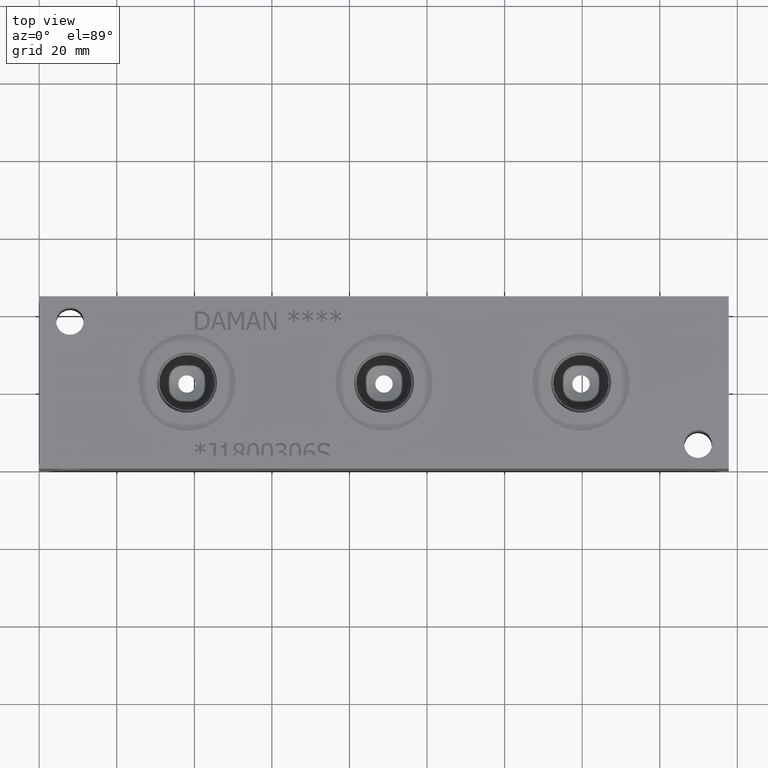
[diagram: clean part render]
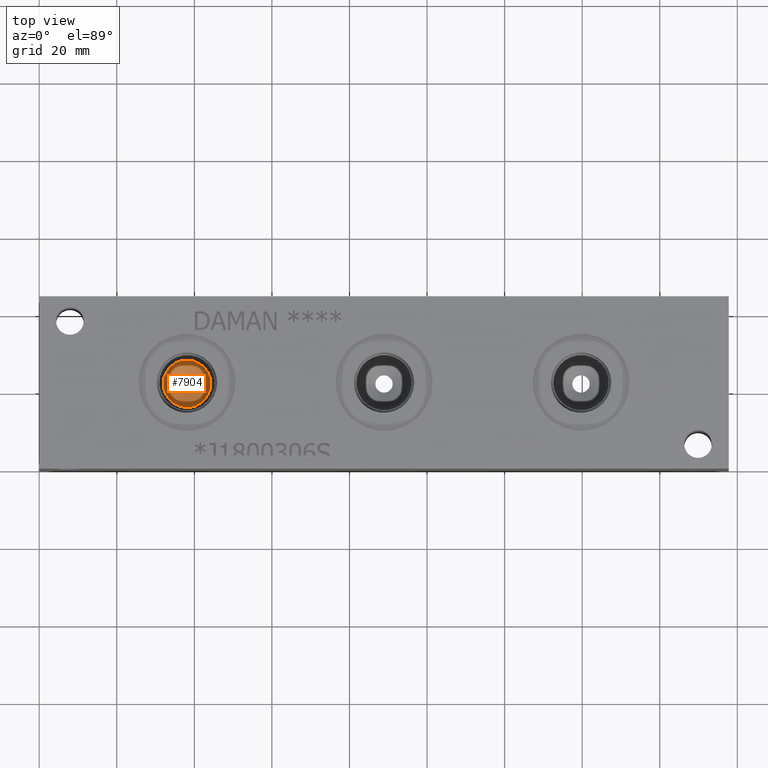
[diagram: same view with one face highlighted and labeled with its STEP entity id]
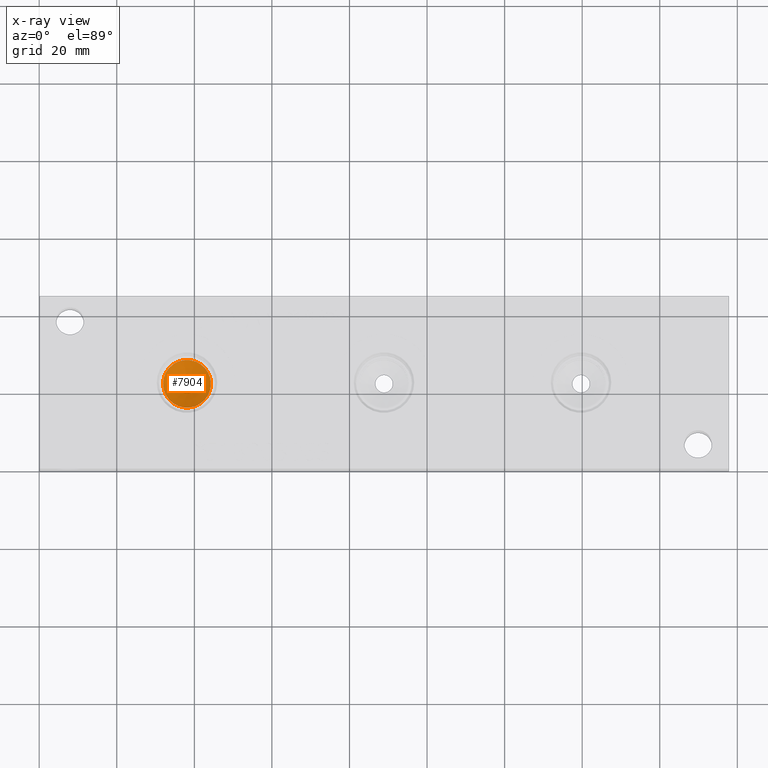
[diagram: x-ray of the same camera — body ghosted, the highlighted face saturated]
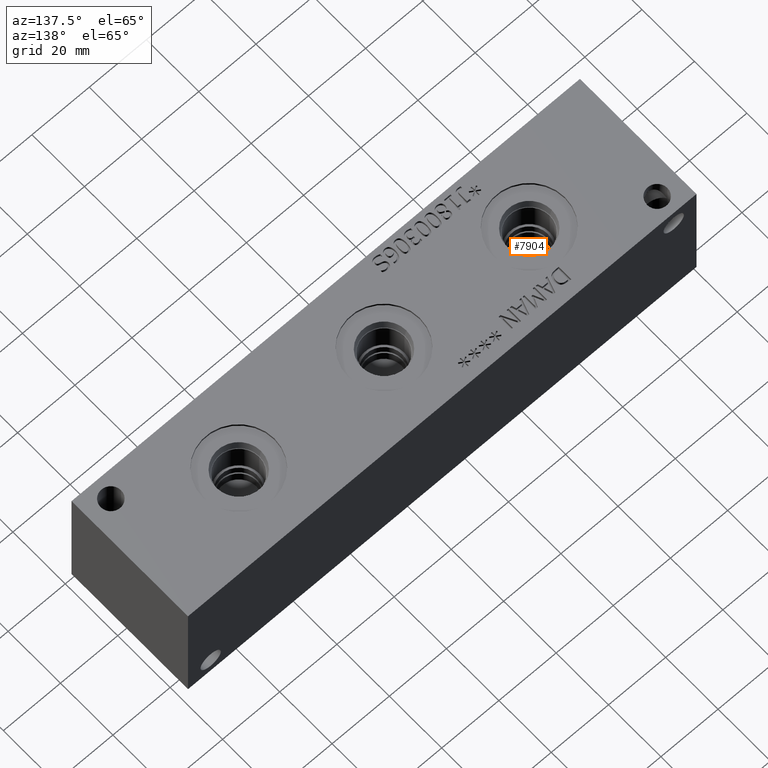
[diagram: same view with one face highlighted and labeled with its STEP entity id]
A machine part, top view. The second image highlights one B-rep face of the part: STEP entity #7904.
The next image is the same camera in x-ray: the body ghosted, the highlighted face saturated — about 0% of this face is hidden behind the body in this view.
A second angle (auxiliary view) of the same face is appended — the face is thin or edge-on in the first view.
In plain terms, the highlighted conical surface has half-angle 60 deg.
Its self-contained STEP definition (entity closure, byte-faithful):
#34=CONICAL_SURFACE('',#8320,3.0734,1.0471975511966);
#129=CIRCLE('',#8211,2.23147316872844);
#196=CIRCLE('',#8321,6.1468);
#197=CIRCLE('',#8322,6.1468);
#875=FACE_OUTER_BOUND('',#1323,.T.);
#1323=EDGE_LOOP('',(#6984,#6985,#6986,#6987,#6988));
#2053=LINE('',#13687,#2772);
#2772=VECTOR('',#9832,3.0734);
#3683=VERTEX_POINT('',#13473);
#3749=VERTEX_POINT('',#13684);
#3750=VERTEX_POINT('',#13685);
#4737=EDGE_CURVE('',#3683,#3683,#129,.T.);
#4838=EDGE_CURVE('',#3749,#3750,#196,.T.);
#4839=EDGE_CURVE('',#3750,#3683,#2053,.T.);
#4840=EDGE_CURVE('',#3750,#3749,#197,.T.);
#6984=ORIENTED_EDGE('',*,*,#4838,.T.);
#6985=ORIENTED_EDGE('',*,*,#4839,.T.);
#6986=ORIENTED_EDGE('',*,*,#4737,.T.);
#6987=ORIENTED_EDGE('',*,*,#4839,.F.);
#6988=ORIENTED_EDGE('',*,*,#4840,.T.);
#7904=ADVANCED_FACE('',(#875),#34,.F.);
#8211=AXIS2_PLACEMENT_3D('',#13475,#9576,#9577);
#8320=AXIS2_PLACEMENT_3D('',#13683,#9828,#9829);
#8321=AXIS2_PLACEMENT_3D('',#13686,#9830,#9831);
#8322=AXIS2_PLACEMENT_3D('',#13688,#9833,#9834);
#9576=DIRECTION('center_axis',(0.,0.,-1.));
#9577=DIRECTION('ref_axis',(1.,0.,0.));
#9828=DIRECTION('center_axis',(0.,0.,1.));
#9829=DIRECTION('ref_axis',(1.,0.,0.));
#9830=DIRECTION('center_axis',(0.,0.,1.));
#9831=DIRECTION('ref_axis',(1.,0.,0.));
#9832=DIRECTION('',(0.866025403784438,1.06057523872491E-16,-0.5));
#9833=DIRECTION('center_axis',(0.,0.,1.));
#9834=DIRECTION('ref_axis',(1.,0.,0.));
#13473=CARTESIAN_POINT('',(35.8685268312716,22.225,22.224235));
#13475=CARTESIAN_POINT('Origin',(38.1,22.225,22.224235));
#13683=CARTESIAN_POINT('Origin',(38.1,22.225,22.7103216826726));
#13684=CARTESIAN_POINT('',(44.2468,22.225,24.48475));
#13685=CARTESIAN_POINT('',(31.9532,22.225,24.48475));
#13686=CARTESIAN_POINT('Origin',(38.1,22.225,24.48475));
#13687=CARTESIAN_POINT('',(35.0266,22.225,22.7103216826726));
#13688=CARTESIAN_POINT('Origin',(38.1,22.225,24.48475));